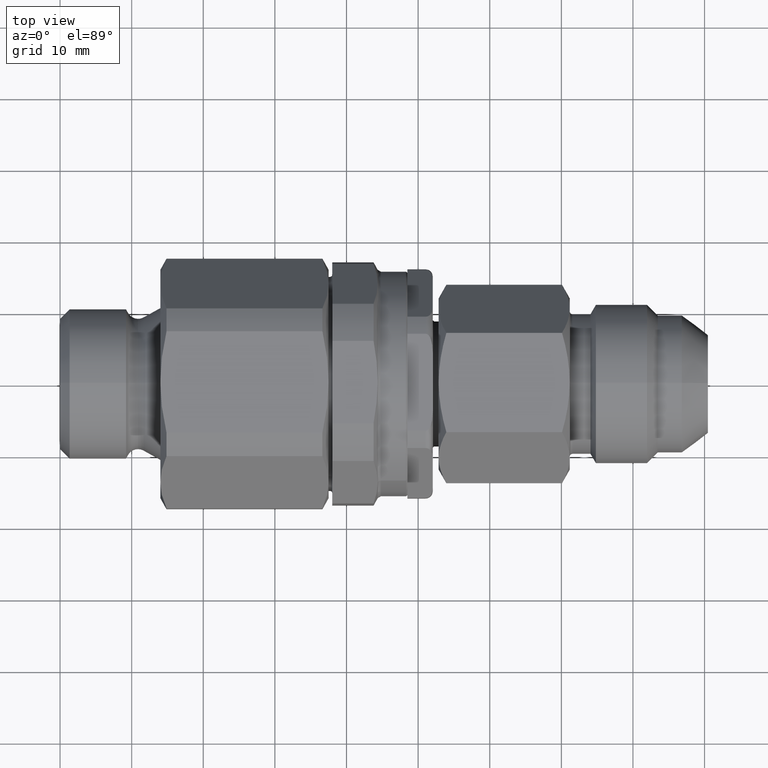
[diagram: clean part render]
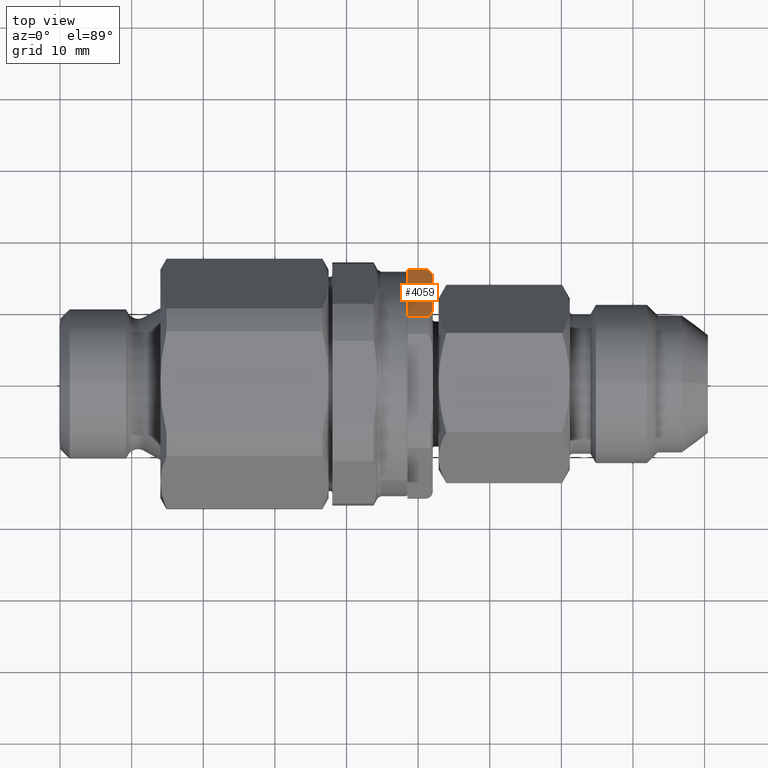
[diagram: same view with one face highlighted and labeled with its STEP entity id]
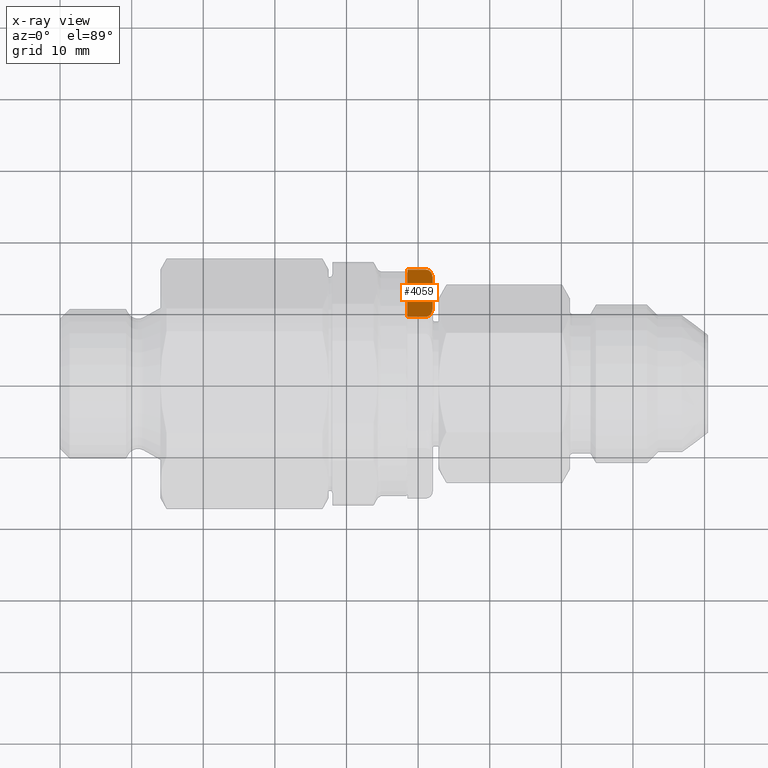
[diagram: x-ray of the same camera — body ghosted, the highlighted face saturated]
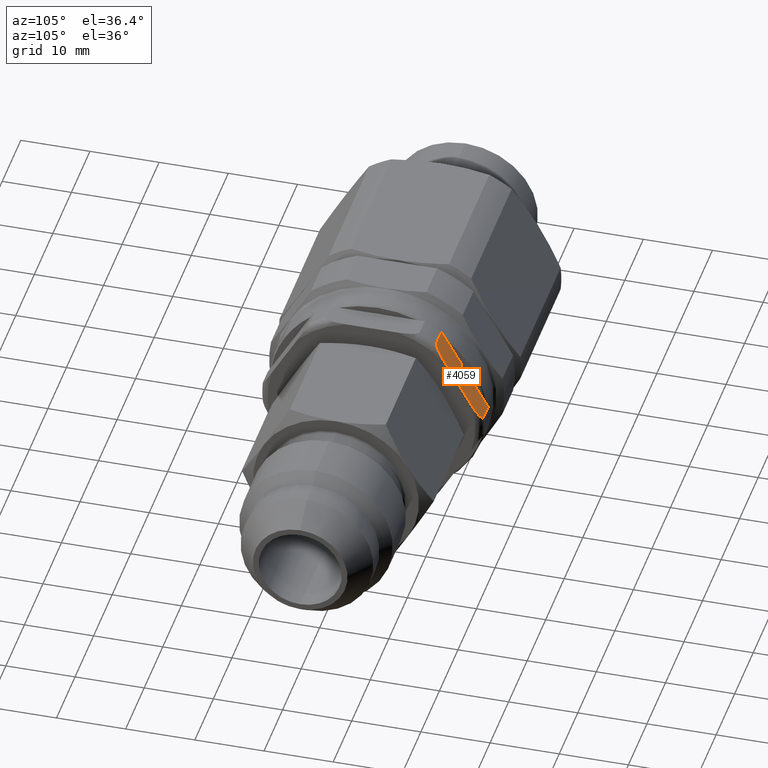
[diagram: same view with one face highlighted and labeled with its STEP entity id]
A machine part, top view. The second image highlights one B-rep face of the part: STEP entity #4059.
The next image is the same camera in x-ray: the body ghosted, the highlighted face saturated — about 0% of this face is hidden behind the body in this view.
A second angle (auxiliary view) of the same face is appended — the face is thin or edge-on in the first view.
In plain terms, the highlighted planar face has unit normal (0, 0.866, 0.5).
Its self-contained STEP definition (entity closure, byte-faithful):
#128 = CARTESIAN_POINT ( 'NONE',  ( 48.49999999999999300, 9.748787752505968700, 12.11460430045445600 ) ) ;
#132 = CARTESIAN_POINT ( 'NONE',  ( 52.04999999999999700, 10.63708191790721900, 10.57603367391249600 ) ) ;
#519 = CARTESIAN_POINT ( 'NONE',  ( 51.04999999999999000, 15.93930566949153200, 1.392312743070002200 ) ) ;
#570 = CARTESIAN_POINT ( 'NONE',  ( 48.98667093580120700, 12.13355265844028700, 7.984070319268999700 ) ) ;
#573 = CARTESIAN_POINT ( 'NONE',  ( 48.49999999999999300, 9.175431040257191000, 13.10768725692999000 ) ) ;
#581 = CARTESIAN_POINT ( 'NONE',  ( 48.50000000000000000, 12.98118405130842100, 6.515929680731023400 ) ) ;
#603 = CARTESIAN_POINT ( 'NONE',  ( 48.98667093580120700, 12.98118405130843400, 6.515929680730995000 ) ) ;
#608 = CARTESIAN_POINT ( 'NONE',  ( 48.50000000000000000, 12.13355265844030700, 7.984070319268972100 ) ) ;
#1230 = VERTEX_POINT ( 'NONE', #519 ) ;
#1241 = VERTEX_POINT ( 'NONE', #573 ) ;
#1264 = VERTEX_POINT ( 'NONE', #608 ) ;
#1269 = VERTEX_POINT ( 'NONE', #603 ) ;
#1271 = VERTEX_POINT ( 'NONE', #581 ) ;
#1280 = VERTEX_POINT ( 'NONE', #570 ) ;
#1301 = VERTEX_POINT ( 'NONE', #5805 ) ;
#1456 = EDGE_CURVE ( 'NONE', #1301, #4283, #3267, .T. ) ;
#1458 = EDGE_CURVE ( 'NONE', #4283, #1230, #3269, .T. ) ;
#1461 = EDGE_CURVE ( 'NONE', #1230, #4234, #5715, .T. ) ;
#1558 = EDGE_CURVE ( 'NONE', #4234, #4213, #3367, .T. ) ;
#1561 = EDGE_CURVE ( 'NONE', #4213, #4260, #5059, .T. ) ;
#1564 = EDGE_CURVE ( 'NONE', #4260, #1241, #3373, .T. ) ;
#1565 = EDGE_CURVE ( 'NONE', #1241, #4211, #3375, .T. ) ;
#1567 = EDGE_CURVE ( 'NONE', #4211, #1264, #3379, .T. ) ;
#1569 = EDGE_CURVE ( 'NONE', #1271, #1301, #3381, .T. ) ;
#1570 = EDGE_CURVE ( 'NONE', #1269, #1271, #3384, .T. ) ;
#1571 = EDGE_CURVE ( 'NONE', #1280, #1269, #3386, .T. ) ;
#1572 = EDGE_CURVE ( 'NONE', #1264, #1280, #3388, .T. ) ;
#2437 = FACE_OUTER_BOUND ( 'NONE', #4974, .T. ) ;
#2814 = AXIS2_PLACEMENT_3D ( 'NONE', #3043, #3044, #3045 ) ;
#3042 = PLANE ( 'NONE',  #2814 ) ;
#3043 = CARTESIAN_POINT ( 'NONE',  ( 34.74999999999999300, 8.371578903249570700, 14.50000000000000500 ) ) ;
#3044 = DIRECTION ( 'NONE',  ( 0.0000000000000000000, 0.8660254037844388200, 0.4999999999999997800 ) ) ;
#3045 = DIRECTION ( 'NONE',  ( 0.0000000000000000000, -0.4999999999999997200, 0.8660254037844387100 ) ) ;
#3267 = LINE ( 'NONE', #3701, #3268 ) ;
#3268 = VECTOR ( 'NONE', #3702, 1000.000000000000100 ) ;
#3269 = LINE ( 'NONE', #3706, #3271 ) ;
#3271 = VECTOR ( 'NONE', #3707, 1000.000000000000000 ) ;
#3367 = LINE ( 'NONE', #5312, #3368 ) ;
#3368 = VECTOR ( 'NONE', #5313, 1000.000000000000100 ) ;
#3373 = LINE ( 'NONE', #5352, #3374 ) ;
#3374 = VECTOR ( 'NONE', #5353, 1000.000000000000000 ) ;
#3375 = LINE ( 'NONE', #5354, #3376 ) ;
#3376 = VECTOR ( 'NONE', #5355, 1000.000000000000100 ) ;
#3379 = LINE ( 'NONE', #5358, #3380 ) ;
#3380 = VECTOR ( 'NONE', #5359, 1000.000000000000100 ) ;
#3381 = LINE ( 'NONE', #5363, #3383 ) ;
#3383 = VECTOR ( 'NONE', #5364, 1000.000000000000100 ) ;
#3384 = LINE ( 'NONE', #5365, #3385 ) ;
#3385 = VECTOR ( 'NONE', #5366, 1000.000000000000000 ) ;
#3386 = LINE ( 'NONE', #5367, #3387 ) ;
#3387 = VECTOR ( 'NONE', #5368, 1000.000000000000100 ) ;
#3388 = LINE ( 'NONE', #5369, #3389 ) ;
#3389 = VECTOR ( 'NONE', #5370, 1000.000000000000000 ) ;
#3701 = CARTESIAN_POINT ( 'NONE',  ( 48.49999999999999300, 16.01986835487435800, 1.252774078792758200 ) ) ;
#3702 = DIRECTION ( 'NONE',  ( 0.0000000000000000000, 0.4999999999999997200, -0.8660254037844387100 ) ) ;
#3706 = CARTESIAN_POINT ( 'NONE',  ( 38.72819999999999400, 15.93930566949153200, 1.392312743070002200 ) ) ;
#3707 = DIRECTION ( 'NONE',  ( 1.000000000000000000, -0.0000000000000000000, -0.0000000000000000000 ) ) ;
#3713 = CARTESIAN_POINT ( 'NONE',  ( 51.04999999999999000, 15.93930566949153200, 1.392312743070002200 ) ) ;
#3714 = CARTESIAN_POINT ( 'NONE',  ( 51.12043664067088900, 15.93930566949153200, 1.392312743069998900 ) ) ;
#3715 = CARTESIAN_POINT ( 'NONE',  ( 51.18914357514333300, 15.93023725970260300, 1.408019689568287000 ) ) ;
#3716 = CARTESIAN_POINT ( 'NONE',  ( 51.31388035411713800, 15.89970417659619400, 1.460904540820296700 ) ) ;
#3717 = CARTESIAN_POINT ( 'NONE',  ( 51.37036633271005600, 15.87838733470379000, 1.497826394034870800 ) ) ;
#3718 = CARTESIAN_POINT ( 'NONE',  ( 51.52011896480253500, 15.80628640358208700, 1.622708870010691500 ) ) ;
#3719 = CARTESIAN_POINT ( 'NONE',  ( 51.59701022943540500, 15.74706865101057800, 1.725277026174574700 ) ) ;
#3720 = CARTESIAN_POINT ( 'NONE',  ( 51.78616343476154800, 15.56327631914691900, 2.043614683003989600 ) ) ;
#3721 = CARTESIAN_POINT ( 'NONE',  ( 51.86221295066049200, 15.42835660088696600, 2.277302489973096000 ) ) ;
#3722 = CARTESIAN_POINT ( 'NONE',  ( 51.97120991705354200, 15.16023683982136200, 2.741699538651964000 ) ) ;
#3723 = CARTESIAN_POINT ( 'NONE',  ( 52.00311955523222500, 15.02473155774113600, 2.976401571908866100 ) ) ;
#3724 = CARTESIAN_POINT ( 'NONE',  ( 52.04274974940457800, 14.75217319701147600, 3.448486500720317600 ) ) ;
#3725 = CARTESIAN_POINT ( 'NONE',  ( 52.05000000000001800, 14.61489749399497600, 3.686254992989638400 ) ) ;
#3726 = CARTESIAN_POINT ( 'NONE',  ( 52.04999999994360800, 14.47765479184150200, 3.923966326087496600 ) ) ;
#4059 = ADVANCED_FACE ( 'NONE', ( #2437 ), #3042, .T. ) ;
#4211 = VERTEX_POINT ( 'NONE', #128 ) ;
#4213 = VERTEX_POINT ( 'NONE', #132 ) ;
#4234 = VERTEX_POINT ( 'NONE', #5833 ) ;
#4260 = VERTEX_POINT ( 'NONE', #5879 ) ;
#4283 = VERTEX_POINT ( 'NONE', #5902 ) ;
#4651 = ORIENTED_EDGE ( 'NONE', *, *, #1570, .F. ) ;
#4652 = ORIENTED_EDGE ( 'NONE', *, *, #1571, .F. ) ;
#4653 = ORIENTED_EDGE ( 'NONE', *, *, #1572, .F. ) ;
#4654 = ORIENTED_EDGE ( 'NONE', *, *, #1567, .F. ) ;
#4655 = ORIENTED_EDGE ( 'NONE', *, *, #1565, .F. ) ;
#4656 = ORIENTED_EDGE ( 'NONE', *, *, #1564, .F. ) ;
#4657 = ORIENTED_EDGE ( 'NONE', *, *, #1561, .F. ) ;
#4658 = ORIENTED_EDGE ( 'NONE', *, *, #1558, .F. ) ;
#4659 = ORIENTED_EDGE ( 'NONE', *, *, #1461, .F. ) ;
#4660 = ORIENTED_EDGE ( 'NONE', *, *, #1458, .F. ) ;
#4661 = ORIENTED_EDGE ( 'NONE', *, *, #1456, .F. ) ;
#4662 = ORIENTED_EDGE ( 'NONE', *, *, #1569, .F. ) ;
#4974 = EDGE_LOOP ( 'NONE', ( #4651, #4652, #4653, #4654, #4655, #4656, #4657, #4658, #4659, #4660, #4661, #4662 ) ) ;
#5059 = B_SPLINE_CURVE_WITH_KNOTS ( 'NONE', 3,
 ( #5333, #5334, #5335, #5336, #5337, #5338, #5339, #5340, #5341, #5342, #5343, #5344, #5345, #5346 ),
 .UNSPECIFIED., .F., .F.,
 ( 4, 2, 2, 2, 2, 2, 4 ),
 ( 0.01109471046828456800, 0.01192798848209879900, 0.01276126649591303000, 0.01359454450972726000, 0.01401118351663437800, 0.01421950302008794000, 0.01442782252354150000 ),
 .UNSPECIFIED. ) ;
#5312 = CARTESIAN_POINT ( 'NONE',  ( 52.04999999999999700, 16.30736835487435600, 0.7548094716167107500 ) ) ;
#5313 = DIRECTION ( 'NONE',  ( 0.0000000000000000000, -0.4999999999999997200, 0.8660254037844387100 ) ) ;
#5333 = CARTESIAN_POINT ( 'NONE',  ( 52.04999999999999700, 10.63708191790721900, 10.57603367391249600 ) ) ;
#5334 = CARTESIAN_POINT ( 'NONE',  ( 52.04999999999998300, 10.49960771737939100, 10.81414597395660200 ) ) ;
#5335 = CARTESIAN_POINT ( 'NONE',  ( 52.04277818244423800, 10.36226161355904400, 11.05203640399507500 ) ) ;
#5336 = CARTESIAN_POINT ( 'NONE',  ( 52.00275842358207300, 10.08802306141674200, 11.52703150969967000 ) ) ;
#5337 = CARTESIAN_POINT ( 'NONE',  ( 51.97040121968120000, 9.951544465676265700, 11.76341937166782800 ) ) ;
#5338 = CARTESIAN_POINT ( 'NONE',  ( 51.86033724160395100, 9.682756102598816000, 12.22897447300125000 ) ) ;
#5339 = CARTESIAN_POINT ( 'NONE',  ( 51.78471315233012700, 9.549188819533659600, 12.46031979349903000 ) ) ;
#5340 = CARTESIAN_POINT ( 'NONE',  ( 51.59403825808284000, 9.365224195079353100, 12.77895586984921100 ) ) ;
#5341 = CARTESIAN_POINT ( 'NONE',  ( 51.51796196429081900, 9.307092646390653800, 12.87964266570070600 ) ) ;
#5342 = CARTESIAN_POINT ( 'NONE',  ( 51.36834124280935000, 9.235538948804778800, 13.00357730538885900 ) ) ;
#5343 = CARTESIAN_POINT ( 'NONE',  ( 51.31221866857082900, 9.214526229345860700, 13.03997240309690600 ) ) ;
#5344 = CARTESIAN_POINT ( 'NONE',  ( 51.18826965374938000, 9.184387145698037700, 13.09217482726849700 ) ) ;
#5345 = CARTESIAN_POINT ( 'NONE',  ( 51.11979945140095100, 9.175431040253931400, 13.10768725693564100 ) ) ;
#5346 = CARTESIAN_POINT ( 'NONE',  ( 51.05000000000034500, 9.175431040257183900, 13.10768725692999800 ) ) ;
#5352 = CARTESIAN_POINT ( 'NONE',  ( 38.72819999999999400, 9.175431040257191000, 13.10768725692999000 ) ) ;
#5353 = DIRECTION ( 'NONE',  ( -1.000000000000000000, 0.0000000000000000000, 0.0000000000000000000 ) ) ;
#5354 = CARTESIAN_POINT ( 'NONE',  ( 48.49999999999999300, 16.01986835487435800, 1.252774078792758200 ) ) ;
#5355 = DIRECTION ( 'NONE',  ( 0.0000000000000000000, 0.4999999999999997200, -0.8660254037844387100 ) ) ;
#5358 = CARTESIAN_POINT ( 'NONE',  ( 48.49999999999999300, 16.01986835487435800, 1.252774078792758200 ) ) ;
#5359 = DIRECTION ( 'NONE',  ( 0.0000000000000000000, 0.4999999999999997200, -0.8660254037844387100 ) ) ;
#5363 = CARTESIAN_POINT ( 'NONE',  ( 48.49999999999999300, 16.01986835487435800, 1.252774078792758200 ) ) ;
#5364 = DIRECTION ( 'NONE',  ( 0.0000000000000000000, 0.4999999999999997200, -0.8660254037844387100 ) ) ;
#5365 = CARTESIAN_POINT ( 'NONE',  ( -8.669368517309802500, 12.98118405130845000, 6.515929680730966600 ) ) ;
#5366 = DIRECTION ( 'NONE',  ( -1.000000000000000000, 4.544012971304954700E-017, -0.0000000000000000000 ) ) ;
#5367 = CARTESIAN_POINT ( 'NONE',  ( 48.98667093580120700, 16.18855685674753500, 0.9605970228957387800 ) ) ;
#5368 = DIRECTION ( 'NONE',  ( 2.272006485652476100E-017, 0.4999999999999997200, -0.8660254037844387100 ) ) ;
#5369 = CARTESIAN_POINT ( 'NONE',  ( -8.669368517309802500, 12.13355265844027300, 7.984070319269025400 ) ) ;
#5370 = DIRECTION ( 'NONE',  ( 1.000000000000000000, -4.544012971304954700E-017, 0.0000000000000000000 ) ) ;
#5715 = B_SPLINE_CURVE_WITH_KNOTS ( 'NONE', 3,
 ( #3713, #3714, #3715, #3716, #3717, #3718, #3719, #3720, #3721, #3722, #3723, #3724, #3725, #3726 ),
 .UNSPECIFIED., .F., .F.,
 ( 4, 2, 2, 2, 2, 2, 4 ),
 ( 1.968157306833179800E-007, 0.0002081512717151599300, 0.0004161057276996365000, 0.0008320146396685866100, 0.001663832463606476800, 0.002495650287544367100, 0.003327468111482257500 ),
 .UNSPECIFIED. ) ;
#5805 = CARTESIAN_POINT ( 'NONE',  ( 48.49999999999999300, 15.36594895724275200, 2.385395699545536100 ) ) ;
#5833 = CARTESIAN_POINT ( 'NONE',  ( 52.04999999994360800, 14.47765479184150200, 3.923966326087496600 ) ) ;
#5879 = CARTESIAN_POINT ( 'NONE',  ( 51.05000000000034500, 9.175431040257183900, 13.10768725692999800 ) ) ;
#5902 = CARTESIAN_POINT ( 'NONE',  ( 48.49999999999999300, 15.93930566949153200, 1.392312743070002200 ) ) ;